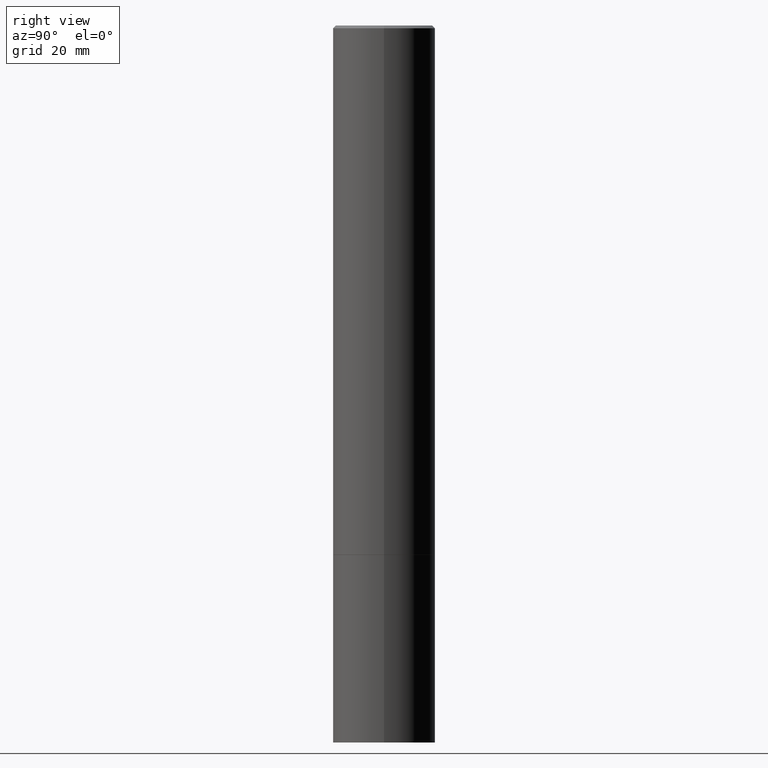
[diagram: clean part render]
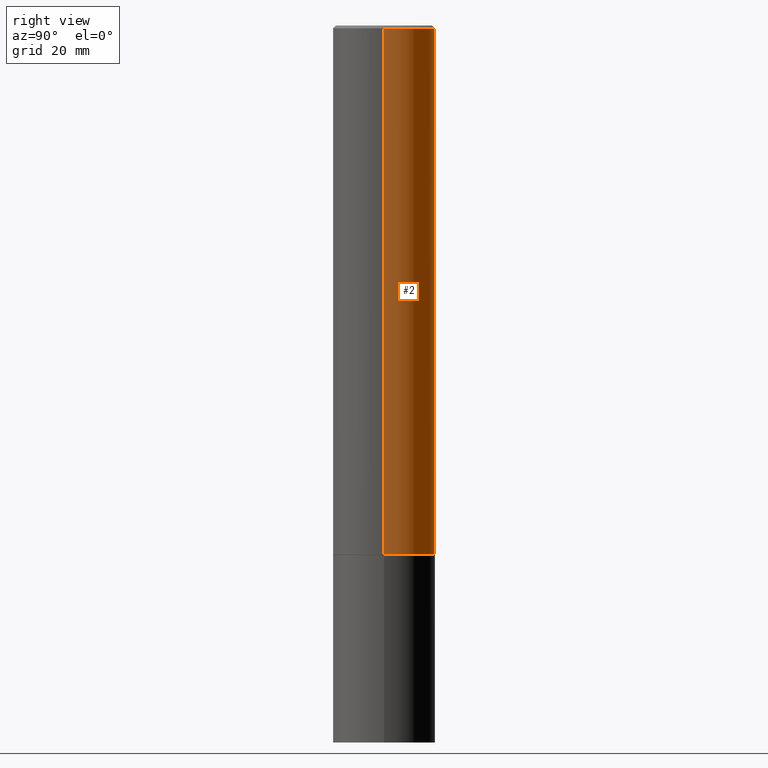
[diagram: same view with one face highlighted and labeled with its STEP entity id]
A machine part, right view. The second image highlights one B-rep face of the part: STEP entity #2.
In plain terms, the highlighted cylindrical surface (partial cylindrical patch) has radius 9.525 mm, axis along (-0, 0, 1).
Its self-contained STEP definition (entity closure, byte-faithful):
#2 = ADVANCED_FACE ( 'NONE', ( #320 ), #131, .T. ) ;
#3 = DIRECTION ( 'NONE',  ( -2.445468806185136597E-29, 3.491481338843145583E-15, 1.000000000000000000 ) ) ;
#13 = CIRCLE ( 'NONE', #164, 0.3749999999999999445 ) ;
#20 = CARTESIAN_POINT ( 'NONE',  ( -0.3749999999999999445, -4.133378907627225046E-15, -3.874000000000000110 ) ) ;
#22 = EDGE_LOOP ( 'NONE', ( #353, #348, #51, #148 ) ) ;
#30 = DIRECTION ( 'NONE',  ( 1.000000000000000000, -6.982962677686269077E-15, 0.000000000000000000 ) ) ;
#51 = ORIENTED_EDGE ( 'NONE', *, *, #141, .F. ) ;
#55 = CARTESIAN_POINT ( 'NONE',  ( 0.3749999999999998335, -2.618611004132348439E-15, 1.828566290923475082E-29 ) ) ;
#59 = DIRECTION ( 'NONE',  ( -2.445468806185136877E-29, 3.491481338843145188E-15, 1.000000000000000000 ) ) ;
#65 = VERTEX_POINT ( 'NONE', #236 ) ;
#70 = VERTEX_POINT ( 'NONE', #20 ) ;
#75 = EDGE_CURVE ( 'NONE', #92, #65, #321, .T. ) ;
#77 = VECTOR ( 'NONE', #268, 39.37007874015748143 ) ;
#92 = VERTEX_POINT ( 'NONE', #102 ) ;
#102 = CARTESIAN_POINT ( 'NONE',  ( 0.3749999999999999445, -1.614460971081069609E-14, -3.874000000000000110 ) ) ;
#107 = DIRECTION ( 'NONE',  ( 1.000000000000000000, -6.982962677686266711E-15, 0.000000000000000000 ) ) ;
#131 = CYLINDRICAL_SURFACE ( 'NONE', #310, 0.3749999999999998335 ) ;
#133 = DIRECTION ( 'NONE',  ( -2.445468806185136597E-29, 3.491481338843145583E-15, 1.000000000000000000 ) ) ;
#135 = EDGE_CURVE ( 'NONE', #92, #70, #13, .T. ) ;
#141 = EDGE_CURVE ( 'NONE', #65, #197, #270, .T. ) ;
#144 = EDGE_CURVE ( 'NONE', #70, #197, #271, .T. ) ;
#148 = ORIENTED_EDGE ( 'NONE', *, *, #75, .F. ) ;
#154 = CARTESIAN_POINT ( 'NONE',  ( 0.000000000000000000, 0.000000000000000000, 0.000000000000000000 ) ) ;
#164 = AXIS2_PLACEMENT_3D ( 'NONE', #181, #133, #30 ) ;
#181 = CARTESIAN_POINT ( 'NONE',  ( 9.473746155161219831E-29, -1.352599870667834608E-14, -3.874000000000000110 ) ) ;
#193 = AXIS2_PLACEMENT_3D ( 'NONE', #243, #3, #107 ) ;
#197 = VERTEX_POINT ( 'NONE', #366 ) ;
#213 = CARTESIAN_POINT ( 'NONE',  ( -0.3749999999999998335, 2.664535259100374514E-15, -1.844600658845588757E-29 ) ) ;
#236 = CARTESIAN_POINT ( 'NONE',  ( 0.3749999999999996669, -2.642516375941185662E-15, -0.02000000000000008715 ) ) ;
#243 = CARTESIAN_POINT ( 'NONE',  ( 4.890937612370294178E-31, -6.982962677686321191E-17, -0.02000000000000008715 ) ) ;
#262 = DIRECTION ( 'NONE',  ( -2.445468806185136597E-29, 3.491481338843145583E-15, 1.000000000000000000 ) ) ;
#268 = DIRECTION ( 'NONE',  ( -2.445468806185136877E-29, 3.491481338843145188E-15, 1.000000000000000000 ) ) ;
#270 = CIRCLE ( 'NONE', #193, 0.3749999999999996669 ) ;
#271 = LINE ( 'NONE', #213, #286 ) ;
#286 = VECTOR ( 'NONE', #59, 39.37007874015748143 ) ;
#310 = AXIS2_PLACEMENT_3D ( 'NONE', #154, #262, #357 ) ;
#320 = FACE_OUTER_BOUND ( 'NONE', #22, .T. ) ;
#321 = LINE ( 'NONE', #55, #77 ) ;
#348 = ORIENTED_EDGE ( 'NONE', *, *, #144, .T. ) ;
#353 = ORIENTED_EDGE ( 'NONE', *, *, #135, .T. ) ;
#357 = DIRECTION ( 'NONE',  ( 1.000000000000000000, -6.982962677686265922E-15, 4.876176775795935793E-29 ) ) ;
#366 = CARTESIAN_POINT ( 'NONE',  ( -0.3749999999999996669, 2.548781377355484352E-15, -0.02000000000000008715 ) ) ;